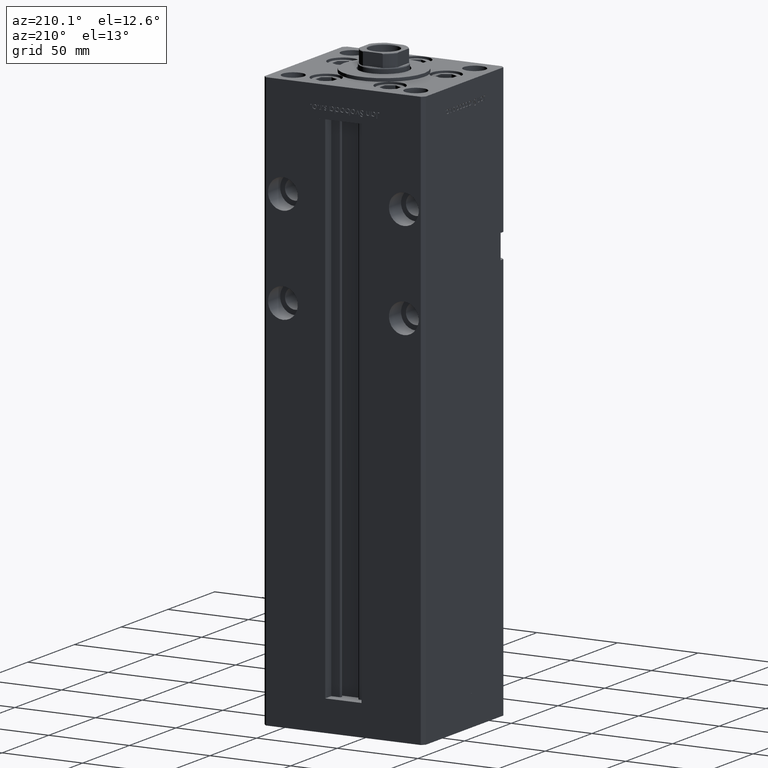
[diagram: clean part render]
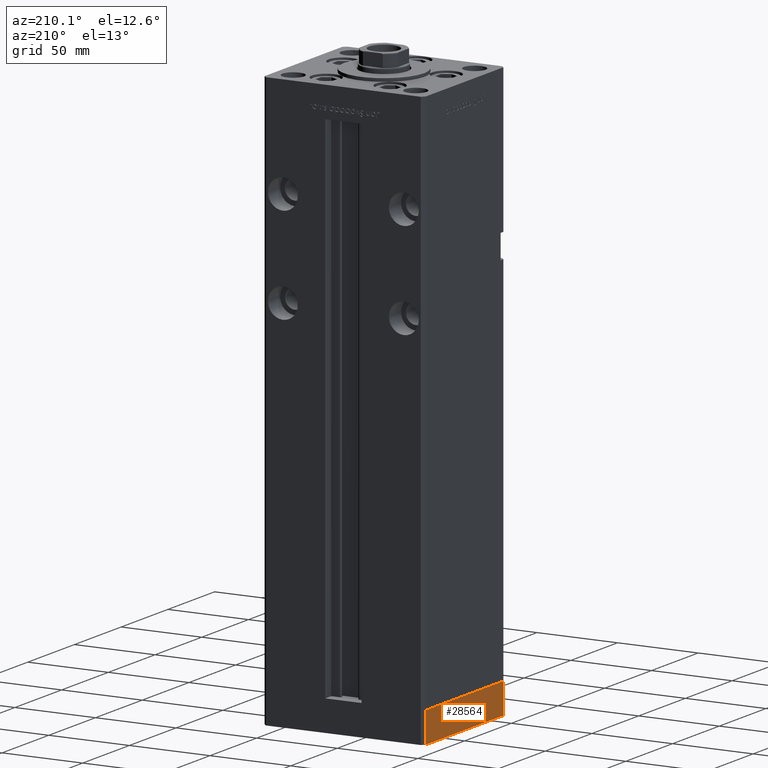
[diagram: same view with one face highlighted and labeled with its STEP entity id]
A machine part, auxiliary view. The second image highlights one B-rep face of the part: STEP entity #28564.
In plain terms, the highlighted planar face has unit normal (-1, -0, 0).
Its self-contained STEP definition (entity closure, byte-faithful):
#1771 = DIRECTION ( 'NONE',  ( 1.000000000000000000, 1.003213576468515193E-15, -0.000000000000000000 ) ) ;
#1993 = ORIENTED_EDGE ( 'NONE', *, *, #43794, .F. ) ;
#2277 = ORIENTED_EDGE ( 'NONE', *, *, #6960, .T. ) ;
#3481 = VERTEX_POINT ( 'NONE', #31801 ) ;
#4954 = EDGE_LOOP ( 'NONE', ( #1993, #18253, #2277, #34031 ) ) ;
#5813 = PLANE ( 'NONE',  #37018 ) ;
#6960 = EDGE_CURVE ( 'NONE', #44760, #10993, #33720, .T. ) ;
#8870 = EDGE_CURVE ( 'NONE', #44760, #3481, #34821, .T. ) ;
#9560 = FACE_OUTER_BOUND ( 'NONE', #4954, .T. ) ;
#10993 = VERTEX_POINT ( 'NONE', #51334 ) ;
#13286 = CARTESIAN_POINT ( 'NONE',  ( 50.00000000000000000, -41.49999999999999289, -19.00000000000000000 ) ) ;
#13609 = EDGE_CURVE ( 'NONE', #10993, #22157, #31877, .T. ) ;
#18253 = ORIENTED_EDGE ( 'NONE', *, *, #8870, .F. ) ;
#18398 = DIRECTION ( 'NONE',  ( 0.000000000000000000, 0.000000000000000000, 1.000000000000000000 ) ) ;
#19131 = VECTOR ( 'NONE', #18398, 1000.000000000000000 ) ;
#22157 = VERTEX_POINT ( 'NONE', #24730 ) ;
#23817 = CARTESIAN_POINT ( 'NONE',  ( 49.99999999999992184, 41.49999999999998579, -19.00000000000000000 ) ) ;
#24730 = CARTESIAN_POINT ( 'NONE',  ( 49.99999999999992184, 41.49999999999998579, 0.000000000000000000 ) ) ;
#25922 = DIRECTION ( 'NONE',  ( -1.003213576468515193E-15, 1.000000000000000000, 0.000000000000000000 ) ) ;
#28564 = ADVANCED_FACE ( 'NONE', ( #9560 ), #5813, .T. ) ;
#28765 = VECTOR ( 'NONE', #32421, 1000.000000000000000 ) ;
#30524 = CARTESIAN_POINT ( 'NONE',  ( 50.00000000000000000, -41.49999999999999289, -19.00000000000000000 ) ) ;
#31319 = CARTESIAN_POINT ( 'NONE',  ( 50.00000000000000000, -41.49999999999999289, -19.00000000000000000 ) ) ;
#31801 = CARTESIAN_POINT ( 'NONE',  ( 50.00000000000000000, -41.49999999999999289, 0.000000000000000000 ) ) ;
#31877 = LINE ( 'NONE', #23817, #48460 ) ;
#32421 = DIRECTION ( 'NONE',  ( -1.003213576468515193E-15, 1.000000000000000000, 0.000000000000000000 ) ) ;
#33720 = LINE ( 'NONE', #13286, #52567 ) ;
#34031 = ORIENTED_EDGE ( 'NONE', *, *, #13609, .T. ) ;
#34821 = LINE ( 'NONE', #31319, #19131 ) ;
#35362 = DIRECTION ( 'NONE',  ( -1.003213576468515193E-15, 1.000000000000000000, 0.000000000000000000 ) ) ;
#36987 = LINE ( 'NONE', #49089, #28765 ) ;
#37018 = AXIS2_PLACEMENT_3D ( 'NONE', #38582, #1771, #35362 ) ;
#38582 = CARTESIAN_POINT ( 'NONE',  ( 50.00000000000000000, -41.49999999999999289, -19.00000000000000000 ) ) ;
#40224 = DIRECTION ( 'NONE',  ( 0.000000000000000000, 0.000000000000000000, 1.000000000000000000 ) ) ;
#43794 = EDGE_CURVE ( 'NONE', #3481, #22157, #36987, .T. ) ;
#44760 = VERTEX_POINT ( 'NONE', #30524 ) ;
#48460 = VECTOR ( 'NONE', #40224, 1000.000000000000000 ) ;
#49089 = CARTESIAN_POINT ( 'NONE',  ( 50.00000000000000000, -41.49999999999999289, 0.000000000000000000 ) ) ;
#51334 = CARTESIAN_POINT ( 'NONE',  ( 49.99999999999992184, 41.49999999999998579, -19.00000000000000000 ) ) ;
#52567 = VECTOR ( 'NONE', #25922, 1000.000000000000000 ) ;